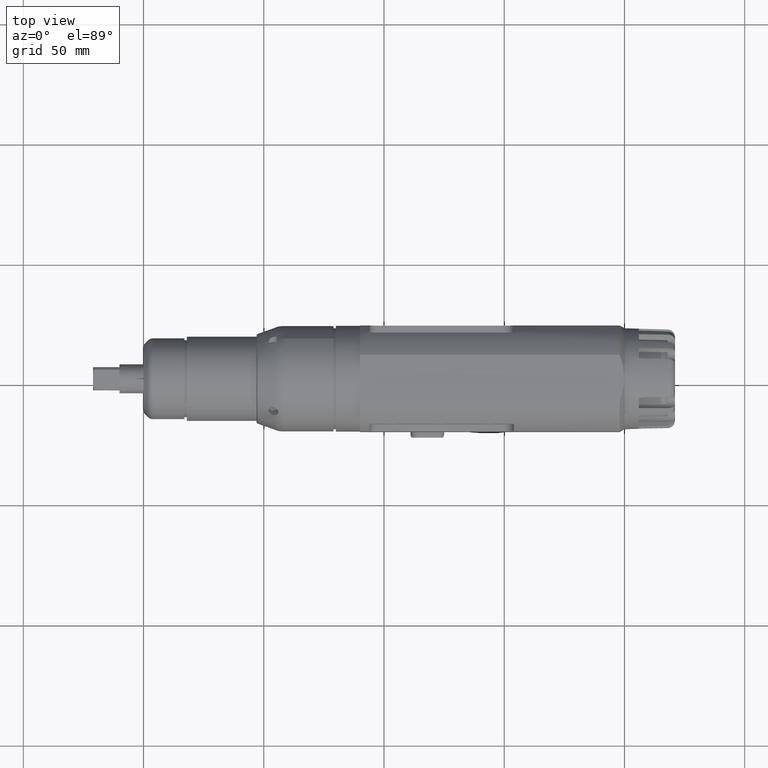
[diagram: clean part render]
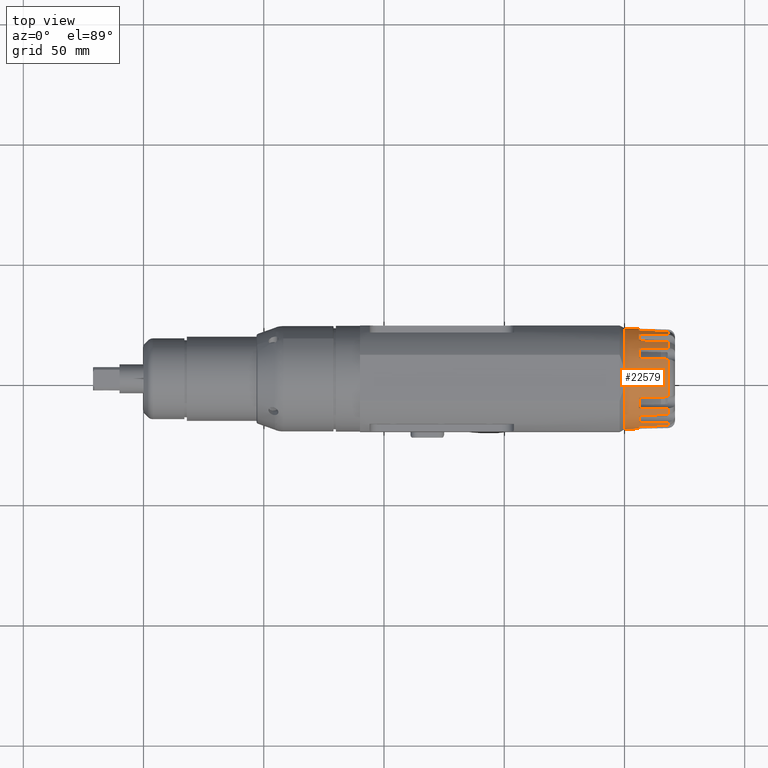
[diagram: same view with one face highlighted and labeled with its STEP entity id]
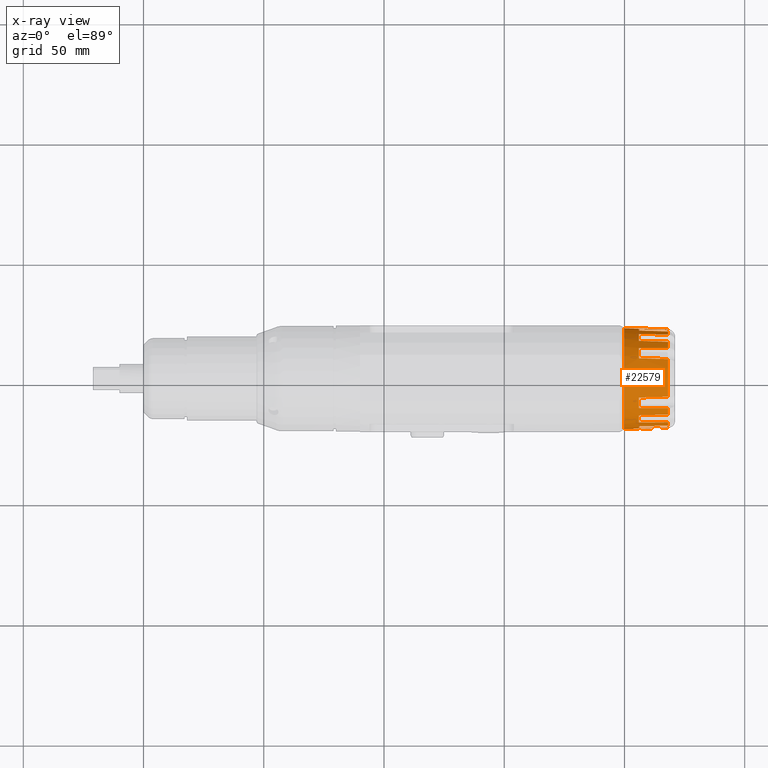
[diagram: x-ray of the same camera — body ghosted, the highlighted face saturated]
A machine part, top view. The second image highlights one B-rep face of the part: STEP entity #22579.
The next image is the same camera in x-ray: the body ghosted, the highlighted face saturated — about 0% of this face is hidden behind the body in this view.
In plain terms, the highlighted conical surface has half-angle 1.584 deg.
Its self-contained STEP definition (entity closure, byte-faithful):
#109=(
BOUNDED_CURVE()
B_SPLINE_CURVE(2,(#38095,#38096,#38097),.UNSPECIFIED.,.F.,.F.)
B_SPLINE_CURVE_WITH_KNOTS((3,3),(0.,1.20900208696095),.UNSPECIFIED.)
CURVE()
GEOMETRIC_REPRESENTATION_ITEM()
RATIONAL_B_SPLINE_CURVE((1.,1.00002113138445,1.00000000313066))
REPRESENTATION_ITEM('')
);
#110=(
BOUNDED_CURVE()
B_SPLINE_CURVE(2,(#38149,#38150,#38151),.UNSPECIFIED.,.F.,.F.)
B_SPLINE_CURVE_WITH_KNOTS((3,3),(8.95648947660723E-5,1.20909165185558),
 .UNSPECIFIED.)
CURVE()
GEOMETRIC_REPRESENTATION_ITEM()
RATIONAL_B_SPLINE_CURVE((1.00000000313067,1.00002113143899,1.))
REPRESENTATION_ITEM('')
);
#111=(
BOUNDED_CURVE()
B_SPLINE_CURVE(2,(#38170,#38171,#38172),.UNSPECIFIED.,.F.,.F.)
B_SPLINE_CURVE_WITH_KNOTS((3,3),(0.,1.20900208696062),.UNSPECIFIED.)
CURVE()
GEOMETRIC_REPRESENTATION_ITEM()
RATIONAL_B_SPLINE_CURVE((1.,1.00002113144324,1.00000000313067))
REPRESENTATION_ITEM('')
);
#112=(
BOUNDED_CURVE()
B_SPLINE_CURVE(2,(#38222,#38223,#38224),.UNSPECIFIED.,.F.,.F.)
B_SPLINE_CURVE_WITH_KNOTS((3,3),(8.95648947661861E-5,1.20909165185558),
 .UNSPECIFIED.)
CURVE()
GEOMETRIC_REPRESENTATION_ITEM()
RATIONAL_B_SPLINE_CURVE((1.00000000313067,1.00002113143683,1.))
REPRESENTATION_ITEM('')
);
#113=(
BOUNDED_CURVE()
B_SPLINE_CURVE(2,(#38243,#38244,#38245),.UNSPECIFIED.,.F.,.F.)
B_SPLINE_CURVE_WITH_KNOTS((3,3),(0.,1.20900208696061),.UNSPECIFIED.)
CURVE()
GEOMETRIC_REPRESENTATION_ITEM()
RATIONAL_B_SPLINE_CURVE((1.,1.00002113141271,1.00000000313067))
REPRESENTATION_ITEM('')
);
#114=(
BOUNDED_CURVE()
B_SPLINE_CURVE(2,(#38295,#38296,#38297),.UNSPECIFIED.,.F.,.F.)
B_SPLINE_CURVE_WITH_KNOTS((3,3),(8.95648950999403E-5,1.20909165185558),
 .UNSPECIFIED.)
CURVE()
GEOMETRIC_REPRESENTATION_ITEM()
RATIONAL_B_SPLINE_CURVE((1.00000000313068,1.00002113151432,1.))
REPRESENTATION_ITEM('')
);
#115=(
BOUNDED_CURVE()
B_SPLINE_CURVE(2,(#38346,#38347,#38348),.UNSPECIFIED.,.F.,.F.)
B_SPLINE_CURVE_WITH_KNOTS((3,3),(8.95648944287947E-5,1.20909165185558),
 .UNSPECIFIED.)
CURVE()
GEOMETRIC_REPRESENTATION_ITEM()
RATIONAL_B_SPLINE_CURVE((1.00000000313067,1.00002113141239,1.))
REPRESENTATION_ITEM('')
);
#116=(
BOUNDED_CURVE()
B_SPLINE_CURVE(2,(#38369,#38370,#38371),.UNSPECIFIED.,.F.,.F.)
B_SPLINE_CURVE_WITH_KNOTS((3,3),(0.,1.20900208696095),.UNSPECIFIED.)
CURVE()
GEOMETRIC_REPRESENTATION_ITEM()
RATIONAL_B_SPLINE_CURVE((1.,1.0000211314019,1.00000000313067))
REPRESENTATION_ITEM('')
);
#117=(
BOUNDED_CURVE()
B_SPLINE_CURVE(2,(#38452,#38453,#38454),.UNSPECIFIED.,.F.,.F.)
B_SPLINE_CURVE_WITH_KNOTS((3,3),(0.,1.20900208696028),.UNSPECIFIED.)
CURVE()
GEOMETRIC_REPRESENTATION_ITEM()
RATIONAL_B_SPLINE_CURVE((1.,1.00002113149154,1.00000000313068))
REPRESENTATION_ITEM('')
);
#118=(
BOUNDED_CURVE()
B_SPLINE_CURVE(2,(#38504,#38505,#38506),.UNSPECIFIED.,.F.,.F.)
B_SPLINE_CURVE_WITH_KNOTS((3,3),(8.95648950972796E-5,1.20909165185558),
 .UNSPECIFIED.)
CURVE()
GEOMETRIC_REPRESENTATION_ITEM()
RATIONAL_B_SPLINE_CURVE((1.00000000313068,1.00002113150583,1.))
REPRESENTATION_ITEM('')
);
#119=(
BOUNDED_CURVE()
B_SPLINE_CURVE(2,(#38525,#38526,#38527),.UNSPECIFIED.,.F.,.F.)
B_SPLINE_CURVE_WITH_KNOTS((3,3),(0.,1.20900208696095),.UNSPECIFIED.)
CURVE()
GEOMETRIC_REPRESENTATION_ITEM()
RATIONAL_B_SPLINE_CURVE((1.,1.00002113137546,1.00000000313066))
REPRESENTATION_ITEM('')
);
#120=(
BOUNDED_CURVE()
B_SPLINE_CURVE(2,(#38579,#38580,#38581),.UNSPECIFIED.,.F.,.F.)
B_SPLINE_CURVE_WITH_KNOTS((3,3),(8.9564894428041E-5,1.20909165185558),
 .UNSPECIFIED.)
CURVE()
GEOMETRIC_REPRESENTATION_ITEM()
RATIONAL_B_SPLINE_CURVE((1.00000000313066,1.00002113138427,1.))
REPRESENTATION_ITEM('')
);
#121=(
BOUNDED_CURVE()
B_SPLINE_CURVE(2,(#38600,#38601,#38602),.UNSPECIFIED.,.F.,.F.)
B_SPLINE_CURVE_WITH_KNOTS((3,3),(0.,1.20900208696095),.UNSPECIFIED.)
CURVE()
GEOMETRIC_REPRESENTATION_ITEM()
RATIONAL_B_SPLINE_CURVE((1.,1.00002113136266,1.00000000313066))
REPRESENTATION_ITEM('')
);
#122=(
BOUNDED_CURVE()
B_SPLINE_CURVE(2,(#38652,#38653,#38654),.UNSPECIFIED.,.F.,.F.)
B_SPLINE_CURVE_WITH_KNOTS((3,3),(8.95648947607591E-5,1.20909165185558),
 .UNSPECIFIED.)
CURVE()
GEOMETRIC_REPRESENTATION_ITEM()
RATIONAL_B_SPLINE_CURVE((1.00000000313067,1.00002113143092,1.))
REPRESENTATION_ITEM('')
);
#724=CONICAL_SURFACE('',#24149,20.7096707754752,0.0276433589097851);
#4348=FACE_OUTER_BOUND('',#5596,.T.);
#5596=EDGE_LOOP('',(#15721,#15722,#15723,#15724,#15725,#15726,#15727,#15728,
#15729,#15730,#15731,#15732,#15733,#15734,#15735,#15736,#15737,#15738,#15739,
#15740,#15741,#15742,#15743,#15744,#15745,#15746,#15747,#15748,#15749,#15750,
#15751,#15752,#15753,#15754,#15755));
#6876=CIRCLE('',#24043,20.8340975859858);
#6883=CIRCLE('',#24054,20.8340975859858);
#6890=CIRCLE('',#24065,20.8340975859858);
#6902=CIRCLE('',#24084,20.8340975859858);
#6904=CIRCLE('',#24087,20.8340975859858);
#6911=CIRCLE('',#24098,20.8340975859858);
#6918=CIRCLE('',#24109,20.8340975859858);
#6925=CIRCLE('',#24120,20.8340975859858);
#6937=CIRCLE('',#24150,20.5);
#6938=CIRCLE('',#24151,21.);
#6939=CIRCLE('',#24152,21.);
#6940=CIRCLE('',#24153,21.);
#6941=CIRCLE('',#24154,21.);
#6942=CIRCLE('',#24155,20.5);
#6943=CIRCLE('',#24156,20.5);
#6944=CIRCLE('',#24157,20.5);
#6945=CIRCLE('',#24158,20.5);
#6946=CIRCLE('',#24159,20.5);
#6947=CIRCLE('',#24160,20.5);
#7772=B_SPLINE_CURVE_WITH_KNOTS('',3,(#37367,#37368,#37369,#37370),
 .UNSPECIFIED.,.F.,.F.,(4,4),(1.4248034844755,2.12119170578887),
 .UNSPECIFIED.);
#7778=B_SPLINE_CURVE_WITH_KNOTS('',3,(#37415,#37416,#37417,#37418),
 .UNSPECIFIED.,.F.,.F.,(4,4),(0.,0.457506503699546),.UNSPECIFIED.);
#9141=VERTEX_POINT('',#37361);
#9142=VERTEX_POINT('',#37366);
#9148=VERTEX_POINT('',#37409);
#9149=VERTEX_POINT('',#37414);
#9199=VERTEX_POINT('',#38086);
#9200=VERTEX_POINT('',#38088);
#9202=VERTEX_POINT('',#38094);
#9209=VERTEX_POINT('',#38148);
#9211=VERTEX_POINT('',#38161);
#9212=VERTEX_POINT('',#38163);
#9214=VERTEX_POINT('',#38169);
#9221=VERTEX_POINT('',#38221);
#9223=VERTEX_POINT('',#38234);
#9224=VERTEX_POINT('',#38236);
#9226=VERTEX_POINT('',#38242);
#9233=VERTEX_POINT('',#38294);
#9240=VERTEX_POINT('',#38344);
#9241=VERTEX_POINT('',#38345);
#9243=VERTEX_POINT('',#38361);
#9245=VERTEX_POINT('',#38368);
#9252=VERTEX_POINT('',#38443);
#9253=VERTEX_POINT('',#38445);
#9255=VERTEX_POINT('',#38451);
#9262=VERTEX_POINT('',#38503);
#9264=VERTEX_POINT('',#38516);
#9265=VERTEX_POINT('',#38518);
#9267=VERTEX_POINT('',#38524);
#9274=VERTEX_POINT('',#38578);
#9276=VERTEX_POINT('',#38591);
#9277=VERTEX_POINT('',#38593);
#9279=VERTEX_POINT('',#38599);
#9286=VERTEX_POINT('',#38651);
#9288=VERTEX_POINT('',#38723);
#9289=VERTEX_POINT('',#38725);
#9290=VERTEX_POINT('',#38727);
#11540=EDGE_CURVE('',#9142,#9141,#7772,.T.);
#11547=EDGE_CURVE('',#9149,#9148,#7778,.T.);
#11631=EDGE_CURVE('',#9200,#9199,#6876,.T.);
#11634=EDGE_CURVE('',#9199,#9202,#109,.T.);
#11646=EDGE_CURVE('',#9209,#9200,#110,.T.);
#11650=EDGE_CURVE('',#9212,#9211,#6883,.T.);
#11653=EDGE_CURVE('',#9211,#9214,#111,.T.);
#11665=EDGE_CURVE('',#9221,#9212,#112,.T.);
#11669=EDGE_CURVE('',#9224,#9223,#6890,.T.);
#11672=EDGE_CURVE('',#9223,#9226,#113,.T.);
#11684=EDGE_CURVE('',#9233,#9224,#114,.T.);
#11698=EDGE_CURVE('',#9240,#9241,#115,.T.);
#11701=EDGE_CURVE('',#9241,#9142,#6902,.T.);
#11704=EDGE_CURVE('',#9148,#9243,#6904,.T.);
#11707=EDGE_CURVE('',#9243,#9245,#116,.T.);
#11721=EDGE_CURVE('',#9253,#9252,#6911,.T.);
#11724=EDGE_CURVE('',#9252,#9255,#117,.T.);
#11736=EDGE_CURVE('',#9262,#9253,#118,.T.);
#11740=EDGE_CURVE('',#9265,#9264,#6918,.T.);
#11743=EDGE_CURVE('',#9264,#9267,#119,.T.);
#11755=EDGE_CURVE('',#9274,#9265,#120,.T.);
#11759=EDGE_CURVE('',#9277,#9276,#6925,.T.);
#11762=EDGE_CURVE('',#9276,#9279,#121,.T.);
#11774=EDGE_CURVE('',#9286,#9277,#122,.T.);
#11787=EDGE_CURVE('',#9240,#9202,#6937,.T.);
#11788=EDGE_CURVE('',#9141,#9288,#6938,.T.);
#11789=EDGE_CURVE('',#9288,#9289,#6939,.T.);
#11790=EDGE_CURVE('',#9289,#9290,#6940,.T.);
#11791=EDGE_CURVE('',#9290,#9149,#6941,.T.);
#11792=EDGE_CURVE('',#9274,#9245,#6942,.T.);
#11793=EDGE_CURVE('',#9221,#9267,#6943,.T.);
#11794=EDGE_CURVE('',#9262,#9214,#6944,.T.);
#11795=EDGE_CURVE('',#9233,#9255,#6945,.T.);
#11796=EDGE_CURVE('',#9286,#9226,#6946,.T.);
#11797=EDGE_CURVE('',#9209,#9279,#6947,.T.);
#15721=ORIENTED_EDGE('',*,*,#11646,.T.);
#15722=ORIENTED_EDGE('',*,*,#11631,.T.);
#15723=ORIENTED_EDGE('',*,*,#11634,.T.);
#15724=ORIENTED_EDGE('',*,*,#11787,.F.);
#15725=ORIENTED_EDGE('',*,*,#11698,.T.);
#15726=ORIENTED_EDGE('',*,*,#11701,.T.);
#15727=ORIENTED_EDGE('',*,*,#11540,.T.);
#15728=ORIENTED_EDGE('',*,*,#11788,.T.);
#15729=ORIENTED_EDGE('',*,*,#11789,.T.);
#15730=ORIENTED_EDGE('',*,*,#11790,.T.);
#15731=ORIENTED_EDGE('',*,*,#11791,.T.);
#15732=ORIENTED_EDGE('',*,*,#11547,.T.);
#15733=ORIENTED_EDGE('',*,*,#11704,.T.);
#15734=ORIENTED_EDGE('',*,*,#11707,.T.);
#15735=ORIENTED_EDGE('',*,*,#11792,.F.);
#15736=ORIENTED_EDGE('',*,*,#11755,.T.);
#15737=ORIENTED_EDGE('',*,*,#11740,.T.);
#15738=ORIENTED_EDGE('',*,*,#11743,.T.);
#15739=ORIENTED_EDGE('',*,*,#11793,.F.);
#15740=ORIENTED_EDGE('',*,*,#11665,.T.);
#15741=ORIENTED_EDGE('',*,*,#11650,.T.);
#15742=ORIENTED_EDGE('',*,*,#11653,.T.);
#15743=ORIENTED_EDGE('',*,*,#11794,.F.);
#15744=ORIENTED_EDGE('',*,*,#11736,.T.);
#15745=ORIENTED_EDGE('',*,*,#11721,.T.);
#15746=ORIENTED_EDGE('',*,*,#11724,.T.);
#15747=ORIENTED_EDGE('',*,*,#11795,.F.);
#15748=ORIENTED_EDGE('',*,*,#11684,.T.);
#15749=ORIENTED_EDGE('',*,*,#11669,.T.);
#15750=ORIENTED_EDGE('',*,*,#11672,.T.);
#15751=ORIENTED_EDGE('',*,*,#11796,.F.);
#15752=ORIENTED_EDGE('',*,*,#11774,.T.);
#15753=ORIENTED_EDGE('',*,*,#11759,.T.);
#15754=ORIENTED_EDGE('',*,*,#11762,.T.);
#15755=ORIENTED_EDGE('',*,*,#11797,.F.);
#22579=ADVANCED_FACE('',(#4348),#724,.T.);
#24043=AXIS2_PLACEMENT_3D('',#38089,#26929,#26930);
#24054=AXIS2_PLACEMENT_3D('',#38164,#26955,#26956);
#24065=AXIS2_PLACEMENT_3D('',#38237,#26981,#26982);
#24084=AXIS2_PLACEMENT_3D('',#38357,#27026,#27027);
#24087=AXIS2_PLACEMENT_3D('',#38363,#27033,#27034);
#24098=AXIS2_PLACEMENT_3D('',#38446,#27059,#27060);
#24109=AXIS2_PLACEMENT_3D('',#38519,#27085,#27086);
#24120=AXIS2_PLACEMENT_3D('',#38594,#27111,#27112);
#24149=AXIS2_PLACEMENT_3D('',#38721,#27172,#27173);
#24150=AXIS2_PLACEMENT_3D('',#38722,#27174,#27175);
#24151=AXIS2_PLACEMENT_3D('',#38724,#27176,#27177);
#24152=AXIS2_PLACEMENT_3D('',#38726,#27178,#27179);
#24153=AXIS2_PLACEMENT_3D('',#38728,#27180,#27181);
#24154=AXIS2_PLACEMENT_3D('',#38729,#27182,#27183);
#24155=AXIS2_PLACEMENT_3D('',#38730,#27184,#27185);
#24156=AXIS2_PLACEMENT_3D('',#38731,#27186,#27187);
#24157=AXIS2_PLACEMENT_3D('',#38732,#27188,#27189);
#24158=AXIS2_PLACEMENT_3D('',#38733,#27190,#27191);
#24159=AXIS2_PLACEMENT_3D('',#38734,#27192,#27193);
#24160=AXIS2_PLACEMENT_3D('',#38735,#27194,#27195);
#26929=DIRECTION('center_axis',(-1.,-4.02244907513075E-16,-1.16789469732028E-16));
#26930=DIRECTION('ref_axis',(-1.16789469732028E-16,4.36460489346908E-16,
1.));
#26955=DIRECTION('center_axis',(-1.,-4.02244907513075E-16,-1.16789469732028E-16));
#26956=DIRECTION('ref_axis',(-1.16789469732028E-16,4.36460489346908E-16,
1.));
#26981=DIRECTION('center_axis',(-1.,-5.50274813515819E-16,1.14079422229342E-17));
#26982=DIRECTION('ref_axis',(-1.16789469732028E-16,4.36460489346908E-16,
1.));
#27026=DIRECTION('center_axis',(-1.,-2.8856578889679E-16,3.12399238093919E-17));
#27027=DIRECTION('ref_axis',(-1.16789469732028E-16,4.36460489346908E-16,
1.));
#27033=DIRECTION('center_axis',(-1.,-4.02244907513075E-16,-1.16789469732028E-16));
#27034=DIRECTION('ref_axis',(-1.16789469732028E-16,4.36460489346908E-16,
1.));
#27059=DIRECTION('center_axis',(-1.,-4.02244907513075E-16,-1.16789469732028E-16));
#27060=DIRECTION('ref_axis',(-1.16789469732028E-16,4.36460489346908E-16,
1.));
#27085=DIRECTION('center_axis',(-1.,-4.02244907513075E-16,-1.16789469732028E-16));
#27086=DIRECTION('ref_axis',(-1.16789469732028E-16,4.36460489346908E-16,
1.));
#27111=DIRECTION('center_axis',(-1.,-4.02244907513075E-16,-1.16789469732028E-16));
#27112=DIRECTION('ref_axis',(-1.16789469732028E-16,4.36460489346908E-16,
1.));
#27172=DIRECTION('center_axis',(-1.,-4.02244907513075E-16,-1.16789469732028E-16));
#27173=DIRECTION('ref_axis',(-1.16789469732028E-16,4.36460489346908E-16,
1.));
#27174=DIRECTION('center_axis',(1.,4.02244907513075E-16,1.16789469732028E-16));
#27175=DIRECTION('ref_axis',(-1.16789469732028E-16,3.44611979410856E-16,
1.));
#27176=DIRECTION('center_axis',(1.,4.02244907513075E-16,1.16789469732028E-16));
#27177=DIRECTION('ref_axis',(4.02244907513075E-16,-1.,4.36460489346908E-16));
#27178=DIRECTION('center_axis',(1.,4.02244907513075E-16,1.16789469732028E-16));
#27179=DIRECTION('ref_axis',(4.02244907513075E-16,-1.,4.36460489346908E-16));
#27180=DIRECTION('center_axis',(1.,4.02244907513075E-16,1.16789469732028E-16));
#27181=DIRECTION('ref_axis',(4.02244907513075E-16,-1.,4.36460489346908E-16));
#27182=DIRECTION('center_axis',(1.,4.02244907513075E-16,1.16789469732028E-16));
#27183=DIRECTION('ref_axis',(4.02244907513075E-16,-1.,4.36460489346908E-16));
#27184=DIRECTION('center_axis',(1.,4.02244907513075E-16,1.16789469732028E-16));
#27185=DIRECTION('ref_axis',(-1.16789469732028E-16,3.44611979410856E-16,
1.));
#27186=DIRECTION('center_axis',(1.,4.02244907513075E-16,1.16789469732028E-16));
#27187=DIRECTION('ref_axis',(-1.16789469732028E-16,3.44611979410856E-16,
1.));
#27188=DIRECTION('center_axis',(1.,4.02244907513075E-16,1.16789469732028E-16));
#27189=DIRECTION('ref_axis',(-1.16789469732028E-16,3.44611979410856E-16,
1.));
#27190=DIRECTION('center_axis',(1.,4.02244907513075E-16,1.16789469732028E-16));
#27191=DIRECTION('ref_axis',(-1.16789469732028E-16,3.44611979410856E-16,
1.));
#27192=DIRECTION('center_axis',(1.,4.02244907513075E-16,1.16789469732028E-16));
#27193=DIRECTION('ref_axis',(-1.16789469732028E-16,3.44611979410856E-16,
1.));
#27194=DIRECTION('center_axis',(1.,4.02244907513075E-16,1.16789469732028E-16));
#27195=DIRECTION('ref_axis',(-1.16789469732028E-16,3.44611979410856E-16,
1.));
#37361=CARTESIAN_POINT('',(200.,20.0774655036852,-6.15592226626785));
#37366=CARTESIAN_POINT('',(206.,19.8699056961678,-6.26470029991687));
#37367=CARTESIAN_POINT('Ctrl Pts',(206.,19.8699056961678,-6.26470029991689));
#37368=CARTESIAN_POINT('Ctrl Pts',(203.702221902218,19.9107434703334,-6.3464665449732));
#37369=CARTESIAN_POINT('Ctrl Pts',(201.509789354487,19.9756678616493,-6.34552289000532));
#37370=CARTESIAN_POINT('Ctrl Pts',(200.,20.0774655036852,-6.15592226626787));
#37409=CARTESIAN_POINT('',(206.,-19.8698730966024,-6.26480369583058));
#37414=CARTESIAN_POINT('',(200.,-20.0774348088518,-6.1560223762023));
#37415=CARTESIAN_POINT('Ctrl Pts',(200.,-20.0774348088518,-6.15602237620228));
#37416=CARTESIAN_POINT('Ctrl Pts',(201.509759516137,-19.9756326799313,-6.3456368571759));
#37417=CARTESIAN_POINT('Ctrl Pts',(203.702154286796,-19.9107085126503,-6.34658250054544));
#37418=CARTESIAN_POINT('Ctrl Pts',(206.,-19.8698730966024,-6.26480369583058));
#38086=CARTESIAN_POINT('',(206.,20.8034469027544,1.12969871499431));
#38088=CARTESIAN_POINT('',(206.,19.9352171576354,6.05365501992802));
#38089=CARTESIAN_POINT('Origin',(206.,3.92831323372257E-14,0.));
#38094=CARTESIAN_POINT('',(218.082919515223,20.4815975411103,0.8684251055714));
#38095=CARTESIAN_POINT('Ctrl Pts',(206.,20.8034469027544,1.12969871499431));
#38096=CARTESIAN_POINT('Ctrl Pts',(212.094843718002,20.6418235133721,0.998035100058323));
#38097=CARTESIAN_POINT('Ctrl Pts',(218.082919515223,20.4815975411103,0.8684251055714));
#38148=CARTESIAN_POINT('',(218.082919515223,19.5434166689263,6.1890924136527));
#38149=CARTESIAN_POINT('Ctrl Pts',(218.082919515223,19.5434166689263,6.1890924136527));
#38150=CARTESIAN_POINT('Ctrl Pts',(212.094843740965,19.7383091505066,6.12209962928832));
#38151=CARTESIAN_POINT('Ctrl Pts',(206.,19.9352171576354,6.05365501992802));
#38161=CARTESIAN_POINT('',(206.,-15.509075999062,13.9114407549217));
#38163=CARTESIAN_POINT('',(206.,-18.3769077521454,9.81574672103529));
#38164=CARTESIAN_POINT('Origin',(206.,3.92831323372257E-14,0.));
#38169=CARTESIAN_POINT('',(218.082919515223,-15.0967457919549,13.8686072297506));
#38170=CARTESIAN_POINT('Ctrl Pts',(206.,-15.509075999062,13.9114407549217));
#38171=CARTESIAN_POINT('Ctrl Pts',(212.094843740531,-15.3016907687059,13.890255995168));
#38172=CARTESIAN_POINT('Ctrl Pts',(218.082919515223,-15.0967457919549,13.8686072297506));
#38221=CARTESIAN_POINT('',(218.082919515223,-18.195631669236,9.44293323906795));
#38222=CARTESIAN_POINT('Ctrl Pts',(218.082919515223,-18.195631669236,9.44293323906795));
#38223=CARTESIAN_POINT('Ctrl Pts',(212.094843740958,-18.2860704124492,9.62811408651049));
#38224=CARTESIAN_POINT('Ctrl Pts',(206.,-18.3769077521454,9.81574672103528));
#38234=CARTESIAN_POINT('',(206.,12.5067984848423,16.6625212342528));
#38236=CARTESIAN_POINT('',(206.,8.17674179676339,19.1624767661031));
#38237=CARTESIAN_POINT('Origin',(206.,3.92831323372257E-14,0.));
#38242=CARTESIAN_POINT('',(218.082919515223,12.500064899624,16.2480268803689));
#38243=CARTESIAN_POINT('Ctrl Pts',(206.,12.5067984848423,16.6625212342528));
#38244=CARTESIAN_POINT('Ctrl Pts',(212.094843740546,12.5037691532819,16.4540787938377));
#38245=CARTESIAN_POINT('Ctrl Pts',(218.082919515223,12.500064899624,16.2480268803689));
#38294=CARTESIAN_POINT('',(218.082919515223,7.82114623429877,18.9493976574907));
#38295=CARTESIAN_POINT('Ctrl Pts',(218.082919515223,7.82114623429877,18.9493976574907));
#38296=CARTESIAN_POINT('Ctrl Pts',(212.094843763736,7.99774015620089,19.0556318278816));
#38297=CARTESIAN_POINT('Ctrl Pts',(206.,8.17674179676339,19.1624767661031));
#38344=CARTESIAN_POINT('',(218.082919515223,20.3279741899603,-2.65018213191296));
#38345=CARTESIAN_POINT('',(206.,20.6258277079315,-2.93851213798896));
#38346=CARTESIAN_POINT('Ctrl Pts',(218.082919515223,20.3279741899603,-2.65018213191296));
#38347=CARTESIAN_POINT('Ctrl Pts',(212.094843718254,20.476294390134,-2.79326333639141));
#38348=CARTESIAN_POINT('Ctrl Pts',(206.,20.6258277079315,-2.93851213798896));
#38357=CARTESIAN_POINT('Origin',(206.,3.92831323372257E-14,0.));
#38361=CARTESIAN_POINT('',(206.,-20.6258237759706,-2.93853973683943));
#38363=CARTESIAN_POINT('Origin',(206.,3.92831323372257E-14,0.));
#38368=CARTESIAN_POINT('',(218.082919515223,-20.3279706438061,-2.65020933221408));
#38369=CARTESIAN_POINT('Ctrl Pts',(206.,-20.6258237759706,-2.93853973683943));
#38370=CARTESIAN_POINT('Ctrl Pts',(212.094843718066,-20.4762906525313,-2.79329073516006));
#38371=CARTESIAN_POINT('Ctrl Pts',(218.082919515223,-20.3279706438061,-2.65020933221408));
#38443=CARTESIAN_POINT('',(206.,-8.17676743753941,19.1624658250125));
#38445=CARTESIAN_POINT('',(206.,-12.5068207804927,16.6625044992347));
#38446=CARTESIAN_POINT('Origin',(206.,3.92831323372257E-14,0.));
#38451=CARTESIAN_POINT('',(218.082919515223,-7.82117158995981,18.949387192213));
#38452=CARTESIAN_POINT('Ctrl Pts',(206.,-8.17676743753941,19.1624658250125));
#38453=CARTESIAN_POINT('Ctrl Pts',(212.094843763485,-7.99776565401818,19.0556211263127));
#38454=CARTESIAN_POINT('Ctrl Pts',(218.082919515223,-7.82117158995981,18.949387192213));
#38503=CARTESIAN_POINT('',(218.082919515223,-12.5000866406509,16.2480101543611));
#38504=CARTESIAN_POINT('Ctrl Pts',(218.082919515223,-12.5000866406509,16.2480101543611));
#38505=CARTESIAN_POINT('Ctrl Pts',(212.094843763507,-12.5037911700084,16.4540620620855));
#38506=CARTESIAN_POINT('Ctrl Pts',(206.,-12.5068207804927,16.6625044992347));
#38516=CARTESIAN_POINT('',(206.,-19.9352252578469,6.05362834515649));
#38518=CARTESIAN_POINT('',(206.,-20.8034484143545,1.12967087847283));
#38519=CARTESIAN_POINT('Origin',(206.,3.92831323372257E-14,0.));
#38524=CARTESIAN_POINT('',(218.082919515223,-19.5434249503632,6.18906626313851));
#38525=CARTESIAN_POINT('Ctrl Pts',(206.,-19.9352252578469,6.05362834515649));
#38526=CARTESIAN_POINT('Ctrl Pts',(212.09484371804,-19.7383173430455,6.12207321773696));
#38527=CARTESIAN_POINT('Ctrl Pts',(218.082919515223,-19.5434249503632,6.18906626313851));
#38578=CARTESIAN_POINT('',(218.082919515223,-20.4815987031076,0.868397699707937));
#38579=CARTESIAN_POINT('Ctrl Pts',(218.082919515223,-20.4815987031076,0.868397699707937));
#38580=CARTESIAN_POINT('Ctrl Pts',(212.094843718037,-20.6418248487959,0.998007479800012));
#38581=CARTESIAN_POINT('Ctrl Pts',(206.,-20.8034484143545,1.12967087847283));
#38591=CARTESIAN_POINT('',(206.,18.3768946179482,9.81577131066164));
#38593=CARTESIAN_POINT('',(206.,15.5090573845318,13.9114615071775));
#38594=CARTESIAN_POINT('Origin',(206.,3.92831323372257E-14,0.));
#38599=CARTESIAN_POINT('',(218.082919515223,18.1956190338904,9.4429575861341));
#38600=CARTESIAN_POINT('Ctrl Pts',(206.,18.3768946179482,9.81577131066164));
#38601=CARTESIAN_POINT('Ctrl Pts',(212.094843717995,18.2860575296626,9.6281385552986));
#38602=CARTESIAN_POINT('Ctrl Pts',(218.082919515223,18.1956190338904,9.4429575861341));
#38651=CARTESIAN_POINT('',(218.082919515223,15.0967272347394,13.8686274302788));
#38652=CARTESIAN_POINT('Ctrl Pts',(218.082919515223,15.0967272347394,13.8686274302788));
#38653=CARTESIAN_POINT('Ctrl Pts',(212.09484374056,15.3016721825215,13.8902764699273));
#38654=CARTESIAN_POINT('Ctrl Pts',(206.,15.5090573845318,13.9114615071775));
#38721=CARTESIAN_POINT('Origin',(210.5,4.10932344210346E-14,0.));
#38722=CARTESIAN_POINT('Origin',(218.082919515223,4.47710566646777E-14,
4.44089209850063E-15));
#38723=CARTESIAN_POINT('',(200.,21.,-8.88178419700125E-15));
#38724=CARTESIAN_POINT('Origin',(200.,3.68696628921473E-14,0.));
#38725=CARTESIAN_POINT('',(200.,4.60353331684323E-14,21.));
#38726=CARTESIAN_POINT('Origin',(200.,3.68696628921473E-14,0.));
#38727=CARTESIAN_POINT('',(200.,-21.,8.88178419700125E-15));
#38728=CARTESIAN_POINT('Origin',(200.,3.68696628921473E-14,0.));
#38729=CARTESIAN_POINT('Origin',(200.,3.68696628921473E-14,0.));
#38730=CARTESIAN_POINT('Origin',(218.082919515223,4.47710566646777E-14,
4.44089209850063E-15));
#38731=CARTESIAN_POINT('Origin',(218.082919515223,4.47710566646777E-14,
4.44089209850063E-15));
#38732=CARTESIAN_POINT('Origin',(218.082919515223,4.47710566646777E-14,
4.44089209850063E-15));
#38733=CARTESIAN_POINT('Origin',(218.082919515223,4.47710566646777E-14,
4.44089209850063E-15));
#38734=CARTESIAN_POINT('Origin',(218.082919515223,4.47710566646777E-14,
4.44089209850063E-15));
#38735=CARTESIAN_POINT('Origin',(218.082919515223,4.47710566646777E-14,
4.44089209850063E-15));